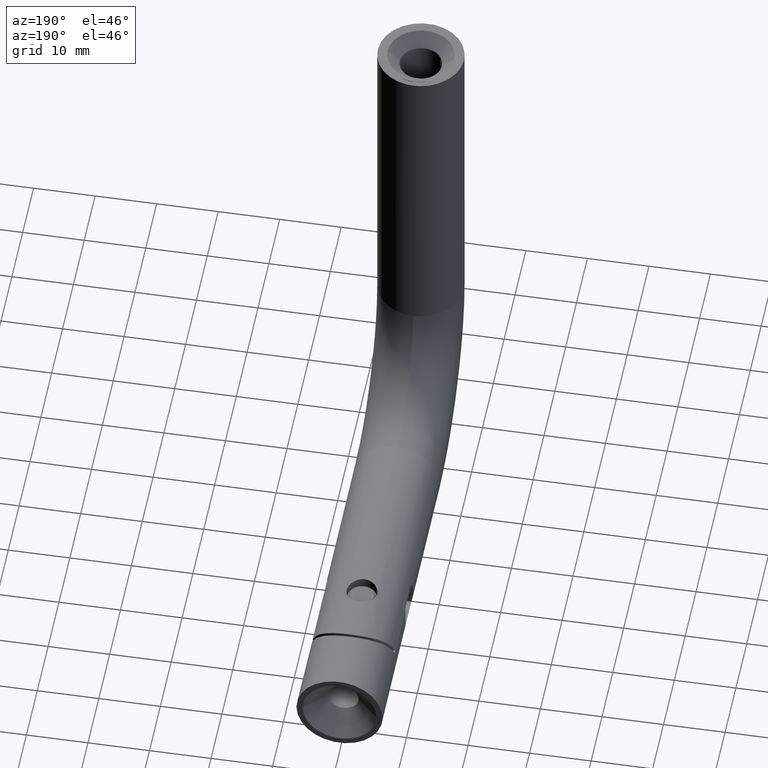
[diagram: clean part render]
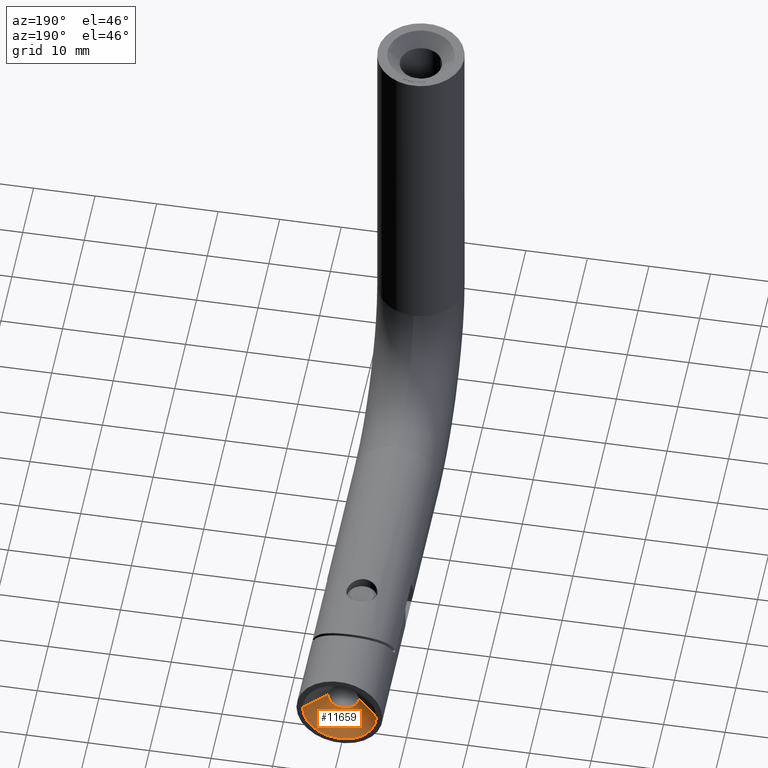
[diagram: same view with one face highlighted and labeled with its STEP entity id]
A machine part, auxiliary view. The second image highlights one B-rep face of the part: STEP entity #11659.
In plain terms, the highlighted conical surface has half-angle 45 deg.
Its self-contained STEP definition (entity closure, byte-faithful):
#59 = CARTESIAN_POINT ( 'NONE',  ( 7.347880794884119736E-16, 12.86999999999998501, -5.999999999999957367 ) ) ;
#320 = EDGE_CURVE ( 'NONE', #5009, #14800, #7110, .T. ) ;
#801 = DIRECTION ( 'NONE',  ( 3.137675037157878745E-31, 0.7071067811865474617, 0.7071067811865475727 ) ) ;
#1220 = DIRECTION ( 'NONE',  ( 0.000000000000000000, 3.469446951953614189E-15, 1.000000000000000000 ) ) ;
#1742 = CARTESIAN_POINT ( 'NONE',  ( 5.204748896376243797E-16, 9.370000000000011653, -2.499999999999967137 ) ) ;
#1884 = CARTESIAN_POINT ( 'NONE',  ( 0.000000000000000000, 12.87000000000000632, 4.286571098077734073E-14 ) ) ;
#2764 = ORIENTED_EDGE ( 'NONE', *, *, #320, .T. ) ;
#2898 = DIRECTION ( 'NONE',  ( 0.000000000000000000, 3.469446951953614189E-15, 1.000000000000000000 ) ) ;
#2949 = DIRECTION ( 'NONE',  ( 4.437342591868192281E-31, 1.000000000000000000, 3.330669073875469621E-15 ) ) ;
#3619 = VECTOR ( 'NONE', #12755, 1000.000000000000000 ) ;
#4043 = CARTESIAN_POINT ( 'NONE',  ( 7.347880794884169040E-16, 12.87000000000002764, -5.999999999999998224 ) ) ;
#4074 = VERTEX_POINT ( 'NONE', #1742 ) ;
#4753 = EDGE_CURVE ( 'NONE', #14800, #14974, #9412, .T. ) ;
#5009 = VERTEX_POINT ( 'NONE', #8545 ) ;
#5474 = CIRCLE ( 'NONE', #6099, 2.499999999999998224 ) ;
#5871 = DIRECTION ( 'NONE',  ( 4.437342591868192281E-31, 1.000000000000000000, 3.330669073875469621E-15 ) ) ;
#6009 = CARTESIAN_POINT ( 'NONE',  ( -1.810466668263399419E-44, 12.86999999999998501, 6.000000000000001776 ) ) ;
#6099 = AXIS2_PLACEMENT_3D ( 'NONE', #15148, #8109, #12828 ) ;
#6193 = FACE_OUTER_BOUND ( 'NONE', #9171, .T. ) ;
#6591 = CARTESIAN_POINT ( 'NONE',  ( 0.000000000000000000, 12.87000000000002764, 6.000000000000042633 ) ) ;
#6880 = ORIENTED_EDGE ( 'NONE', *, *, #12676, .F. ) ;
#7110 = LINE ( 'NONE', #6591, #13861 ) ;
#8109 = DIRECTION ( 'NONE',  ( -4.437342591868192281E-31, -1.000000000000000000, -3.330669073875469621E-15 ) ) ;
#8545 = CARTESIAN_POINT ( 'NONE',  ( 0.000000000000000000, 9.370000000000011653, 2.500000000000029754 ) ) ;
#9171 = EDGE_LOOP ( 'NONE', ( #6880, #10276, #2764, #9865 ) ) ;
#9412 = CIRCLE ( 'NONE', #11519, 6.000000000000000000 ) ;
#9865 = ORIENTED_EDGE ( 'NONE', *, *, #4753, .T. ) ;
#9928 = EDGE_CURVE ( 'NONE', #4074, #5009, #5474, .T. ) ;
#10276 = ORIENTED_EDGE ( 'NONE', *, *, #9928, .T. ) ;
#10401 = AXIS2_PLACEMENT_3D ( 'NONE', #12927, #5871, #1220 ) ;
#11519 = AXIS2_PLACEMENT_3D ( 'NONE', #1884, #2949, #2898 ) ;
#11659 = ADVANCED_FACE ( 'NONE', ( #6193 ), #12956, .F. ) ;
#12395 = LINE ( 'NONE', #59, #3619 ) ;
#12676 = EDGE_CURVE ( 'NONE', #4074, #14974, #12395, .T. ) ;
#12755 = DIRECTION ( 'NONE',  ( 8.659560562354993255E-17, 0.7071067811865474617, -0.7071067811865475727 ) ) ;
#12828 = DIRECTION ( 'NONE',  ( 0.000000000000000000, 3.469446951953616555E-15, 1.000000000000000000 ) ) ;
#12927 = CARTESIAN_POINT ( 'NONE',  ( 0.000000000000000000, 12.87000000000000632, 4.286571098077734073E-14 ) ) ;
#12956 = CONICAL_SURFACE ( 'NONE', #10401, 6.000000000000000000, 0.7853981633974483900 ) ;
#13861 = VECTOR ( 'NONE', #801, 1000.000000000000000 ) ;
#14800 = VERTEX_POINT ( 'NONE', #6009 ) ;
#14974 = VERTEX_POINT ( 'NONE', #4043 ) ;
#15148 = CARTESIAN_POINT ( 'NONE',  ( 0.000000000000000000, 9.370000000000002771, 3.120836922221317812E-14 ) ) ;